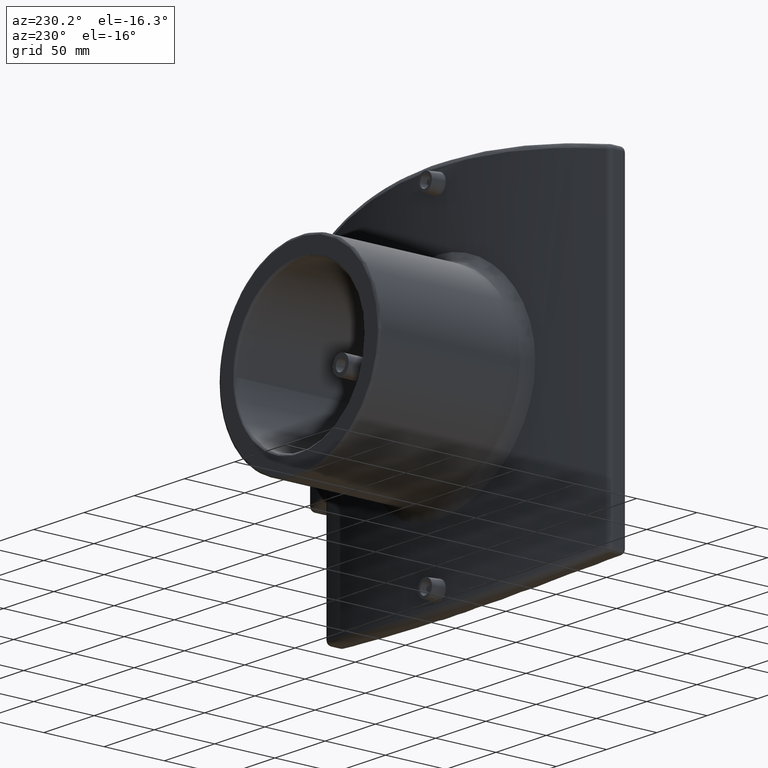
[diagram: clean part render]
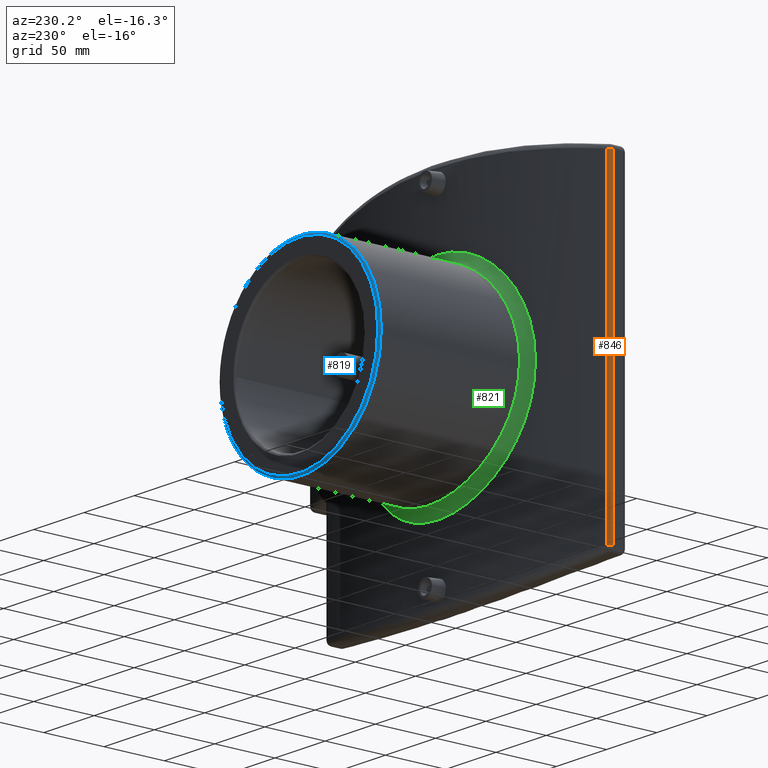
[diagram: same view with three faces highlighted in distinct colors, each labeled with its STEP entity id]
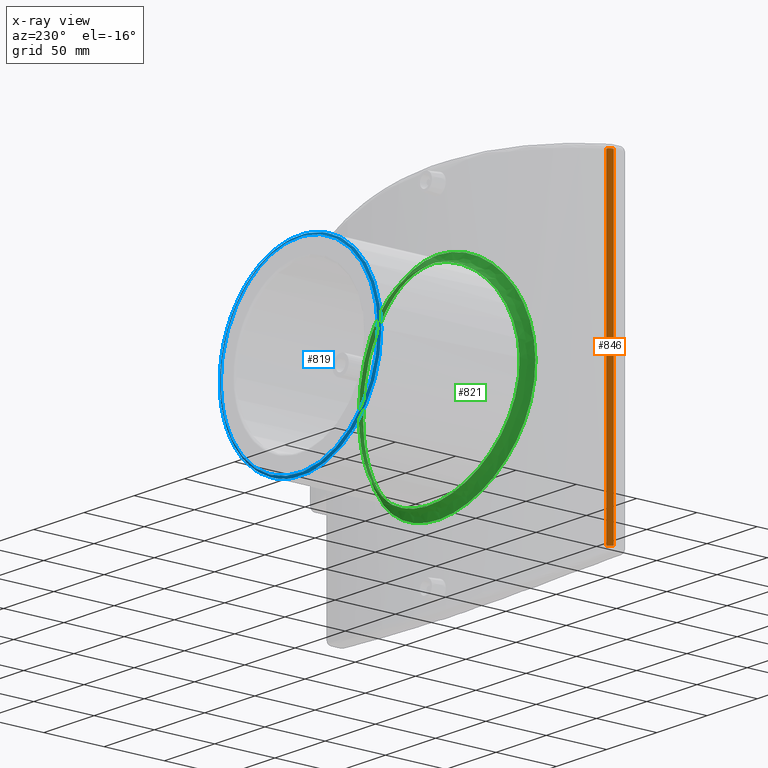
[diagram: x-ray of the same camera — body ghosted, the three highlighted faces saturated]
A machine part, auxiliary view with three faces highlighted in distinct colors.
The next image is the same camera in x-ray (body ghosted, the three faces saturated) — at least one of them is partly hidden behind the body in this view.
Their STEP definitions:

[orange] entity #846 — the highlighted cylindrical surface (edge-blend (fillet) strip) has radius 4 mm, axis along (0, 0, -1).
#31=LINE('',#1592,#61);
#34=LINE('',#1900,#64);
#61=VECTOR('',#1036,263.515226148029);
#64=VECTOR('',#1147,263.515226148028);
#125=CYLINDRICAL_SURFACE('',#949,4.);
#209=FACE_OUTER_BOUND('',#296,.T.);
#296=EDGE_LOOP('',(#661,#662,#663,#664));
#359=CIRCLE('',#934,4.00000000000002);
#369=CIRCLE('',#947,4.00000000000002);
#408=VERTEX_POINT('',#1580);
#409=VERTEX_POINT('',#1591);
#434=VERTEX_POINT('',#1815);
#442=VERTEX_POINT('',#1896);
#480=EDGE_CURVE('',#409,#408,#31,.T.);
#508=EDGE_CURVE('',#408,#434,#359,.F.);
#519=EDGE_CURVE('',#442,#409,#369,.F.);
#521=EDGE_CURVE('',#434,#442,#34,.T.);
#661=ORIENTED_EDGE('',*,*,#508,.T.);
#662=ORIENTED_EDGE('',*,*,#521,.T.);
#663=ORIENTED_EDGE('',*,*,#519,.T.);
#664=ORIENTED_EDGE('',*,*,#480,.T.);
#846=ADVANCED_FACE('',(#209),#125,.T.);
#934=AXIS2_PLACEMENT_3D('',#1816,#1115,#1116);
#947=AXIS2_PLACEMENT_3D('',#1897,#1141,#1142);
#949=AXIS2_PLACEMENT_3D('',#1899,#1145,#1146);
#1036=DIRECTION('',(0.,0.,-1.));
#1115=DIRECTION('center_axis',(-3.55271367880048E-14,-1.26381778809256E-14,
-1.));
#1116=DIRECTION('ref_axis',(-0.335158150851569,0.942161883074112,0.));
#1141=DIRECTION('center_axis',(0.,-4.24216152282627E-14,1.));
#1142=DIRECTION('ref_axis',(-1.,0.,0.));
#1145=DIRECTION('center_axis',(0.,0.,-1.));
#1146=DIRECTION('ref_axis',(-0.817055123859947,0.576559558566335,0.));
#1147=DIRECTION('',(0.,0.,1.));
#1580=CARTESIAN_POINT('',(-139.090632603403,390.997181475756,-131.757613074014));
#1591=CARTESIAN_POINT('',(-139.090632603403,390.997181475756,131.757613074014));
#1592=CARTESIAN_POINT('',(-139.090632603403,390.997181475756,0.));
#1815=CARTESIAN_POINT('',(-141.749999999997,387.22853394346,-131.757613074014));
#1816=CARTESIAN_POINT('Origin',(-137.749999999996,387.22853394346,-131.757613074014));
#1896=CARTESIAN_POINT('',(-141.749999999997,387.22853394346,131.757613074014));
#1897=CARTESIAN_POINT('Origin',(-137.749999999996,387.22853394346,131.757613074014));
#1899=CARTESIAN_POINT('Origin',(-137.749999999996,387.22853394346,0.));
#1900=CARTESIAN_POINT('',(-141.749999999997,387.22853394346,0.));

[blue] entity #819 — the highlighted toroidal blend (fillet) surface has major radius 78.4 mm and minor (blend) radius 1.6 mm.
#159=FACE_BOUND('',#252,.T.);
#182=FACE_OUTER_BOUND('',#251,.T.);
#251=EDGE_LOOP('',(#588));
#252=EDGE_LOOP('',(#589));
#336=CIRCLE('',#888,78.4);
#337=CIRCLE('',#891,80.);
#399=VERTEX_POINT('',#1295);
#401=VERTEX_POINT('',#1366);
#470=EDGE_CURVE('',#399,#399,#336,.T.);
#472=EDGE_CURVE('',#401,#401,#337,.T.);
#588=ORIENTED_EDGE('',*,*,#470,.T.);
#589=ORIENTED_EDGE('',*,*,#472,.T.);
#811=TOROIDAL_SURFACE('',#890,78.4,1.6);
#819=ADVANCED_FACE('',(#182,#159),#811,.T.);
#888=AXIS2_PLACEMENT_3D('',#1296,#1018,#1019);
#890=AXIS2_PLACEMENT_3D('',#1365,#1022,#1023);
#891=AXIS2_PLACEMENT_3D('',#1367,#1024,#1025);
#1018=DIRECTION('center_axis',(0.,-1.,0.));
#1019=DIRECTION('ref_axis',(1.,0.,0.));
#1022=DIRECTION('center_axis',(0.,-1.,0.));
#1023=DIRECTION('ref_axis',(0.,0.,-1.));
#1024=DIRECTION('center_axis',(0.,1.,0.));
#1025=DIRECTION('ref_axis',(1.,0.,0.));
#1295=CARTESIAN_POINT('',(-78.4,530.,-9.60123090531525E-15));
#1296=CARTESIAN_POINT('Origin',(0.,530.,0.));
#1365=CARTESIAN_POINT('Origin',(0.,528.4,0.));
#1366=CARTESIAN_POINT('',(-80.,528.4,9.79717439317883E-15));
#1367=CARTESIAN_POINT('Origin',(0.,528.4,0.));

[green] entity #821 — the highlighted face is a freeform B-spline surface patch.
#89=B_SPLINE_SURFACE_WITH_KNOTS('',3,3,((#1395,#1396,#1397,#1398,#1399,
#1400,#1401,#1402,#1403,#1404,#1405,#1406,#1407,#1408,#1409,#1410,#1411,
#1412,#1413,#1414,#1415,#1416,#1417,#1418,#1419),(#1420,#1421,#1422,#1423,
#1424,#1425,#1426,#1427,#1428,#1429,#1430,#1431,#1432,#1433,#1434,#1435,
#1436,#1437,#1438,#1439,#1440,#1441,#1442,#1443,#1444),(#1445,#1446,#1447,
#1448,#1449,#1450,#1451,#1452,#1453,#1454,#1455,#1456,#1457,#1458,#1459,
#1460,#1461,#1462,#1463,#1464,#1465,#1466,#1467,#1468,#1469),(#1470,#1471,
#1472,#1473,#1474,#1475,#1476,#1477,#1478,#1479,#1480,#1481,#1482,#1483,
#1484,#1485,#1486,#1487,#1488,#1489,#1490,#1491,#1492,#1493,#1494),(#1495,
#1496,#1497,#1498,#1499,#1500,#1501,#1502,#1503,#1504,#1505,#1506,#1507,
#1508,#1509,#1510,#1511,#1512,#1513,#1514,#1515,#1516,#1517,#1518,#1519),
(#1520,#1521,#1522,#1523,#1524,#1525,#1526,#1527,#1528,#1529,#1530,#1531,
#1532,#1533,#1534,#1535,#1536,#1537,#1538,#1539,#1540,#1541,#1542,#1543,
#1544)),.UNSPECIFIED.,.F.,.T.,.F.,(4,1,1,4),(4,1,1,1,1,1,1,1,1,1,1,1,1,
1,1,1,1,1,1,1,1,1,4),(0.,0.285714285714286,0.571428571428571,1.),(-6.20388832212787E-16,
1.72665278627976,3.45330557255951,6.90661114511902,9.2088148601587,11.5110185751984,
13.813222290238,16.1154260052777,18.4176297203174,20.7198334353571,23.0220371503967,
25.3242408654364,27.6264445804761,29.9286482955158,32.2308520105554,34.5330557255951,
35.684157583115,36.8352594406348,39.1374631556745,41.4396668707141,44.8929724432737,
46.6196252295534,48.3462780158332),.UNSPECIFIED.);
#95=B_SPLINE_CURVE_WITH_KNOTS('',3,(#1370,#1371,#1372,#1373,#1374,#1375,
#1376,#1377,#1378,#1379,#1380,#1381,#1382,#1383,#1384,#1385,#1386,#1387,
#1388,#1389,#1390,#1391,#1392,#1393,#1394),.UNSPECIFIED.,.T.,.F.,(4,1,1,
1,1,1,1,1,1,1,1,1,1,1,1,1,1,1,1,1,1,1,4),(-6.20388832212787E-16,1.72665278627976,
3.45330557255951,6.90661114511902,9.2088148601587,11.5110185751984,13.813222290238,
16.1154260052777,18.4176297203174,20.7198334353571,23.0220371503967,25.3242408654364,
27.6264445804761,29.9286482955158,32.2308520105554,34.5330557255951,35.684157583115,
36.8352594406348,39.1374631556745,41.4396668707141,44.8929724432737,46.6196252295534,
48.3462780158332),.UNSPECIFIED.);
#96=B_SPLINE_CURVE_WITH_KNOTS('',3,(#1547,#1548,#1549,#1550,#1551,#1552,
#1553,#1554,#1555,#1556,#1557,#1558,#1559,#1560,#1561,#1562,#1563,#1564,
#1565,#1566,#1567,#1568,#1569,#1570,#1571),.UNSPECIFIED.,.T.,.F.,(4,1,1,
1,1,1,1,1,1,1,1,1,1,1,1,1,1,1,1,1,1,1,4),(-48.3462780158332,-46.6196252295534,
-44.8929724432737,-41.4396668707141,-39.1374631556745,-36.8352594406348,
-35.684157583115,-34.5330557255951,-32.2308520105554,-29.9286482955158,
-27.6264445804761,-25.3242408654364,-23.0220371503967,-20.7198334353571,
-18.4176297203174,-16.1154260052777,-13.813222290238,-11.5110185751984,
-9.2088148601587,-6.90661114511902,-3.45330557255951,-1.72665278627976,
6.20388832212787E-16),.UNSPECIFIED.);
#184=FACE_OUTER_BOUND('',#255,.T.);
#255=EDGE_LOOP('',(#592,#593,#594,#595));
#338=CIRCLE('',#893,7.99999999999997);
#402=VERTEX_POINT('',#1369);
#403=VERTEX_POINT('',#1545);
#473=EDGE_CURVE('',#402,#402,#95,.T.);
#474=EDGE_CURVE('',#403,#402,#338,.T.);
#475=EDGE_CURVE('',#403,#403,#96,.T.);
#592=ORIENTED_EDGE('',*,*,#474,.T.);
#593=ORIENTED_EDGE('',*,*,#473,.T.);
#594=ORIENTED_EDGE('',*,*,#474,.F.);
#595=ORIENTED_EDGE('',*,*,#475,.T.);
#821=ADVANCED_FACE('',(#184),#89,.T.);
#893=AXIS2_PLACEMENT_3D('',#1546,#1028,#1029);
#1028=DIRECTION('center_axis',(8.32667268468869E-16,-1.77101121654537E-16,
-1.));
#1029=DIRECTION('ref_axis',(-0.208037825059098,-0.978120781572848,0.));
#1369=CARTESIAN_POINT('',(80.,413.745090605315,-2.22044604925031E-15));
#1370=CARTESIAN_POINT('Ctrl Pts',(80.0008201309667,413.744704478561,2.33346759778464E-5));
#1371=CARTESIAN_POINT('Ctrl Pts',(80.000801855999,413.744708749628,5.99941859728239));
#1372=CARTESIAN_POINT('Ctrl Pts',(78.6391504110109,414.067773115791,17.9983683730331));
#1373=CARTESIAN_POINT('Ctrl Pts',(70.6732553962849,415.855717268021,40.7531659615262));
#1374=CARTESIAN_POINT('Ctrl Pts',(54.1443536859897,419.070999879336,61.4520125548949));
#1375=CARTESIAN_POINT('Ctrl Pts',(29.7311600034439,421.9806943076,75.5615705124643));
#1376=CARTESIAN_POINT('Ctrl Pts',(6.09145256560296,423.228526904036,80.9842472203839));
#1377=CARTESIAN_POINT('Ctrl Pts',(-18.1261460797923,422.800062663488,79.1596938014846));
#1378=CARTESIAN_POINT('Ctrl Pts',(-40.6533090370776,420.842554442527,70.2898170339763));
#1379=CARTESIAN_POINT('Ctrl Pts',(-59.5139627487697,418.035508465178,55.2326941056274));
#1380=CARTESIAN_POINT('Ctrl Pts',(-73.1292121246254,415.333425604936,35.2947445761653));
#1381=CARTESIAN_POINT('Ctrl Pts',(-80.2982911806718,413.676429595302,12.1439265381207));
#1382=CARTESIAN_POINT('Ctrl Pts',(-80.2968431227765,413.677667041839,-12.1427700864777));
#1383=CARTESIAN_POINT('Ctrl Pts',(-73.1305460000373,415.332615483149,-35.2950524987753));
#1384=CARTESIAN_POINT('Ctrl Pts',(-59.5140493314051,418.035555214428,-55.2322285436699));
#1385=CARTESIAN_POINT('Ctrl Pts',(-40.6543644487137,420.842729400372,-70.2894923728537));
#1386=CARTESIAN_POINT('Ctrl Pts',(-21.8792659593339,422.472436273721,-77.6806863269993));
#1387=CARTESIAN_POINT('Ctrl Pts',(-6.0182669128439,423.015787117418,-80.0727340863534));
#1388=CARTESIAN_POINT('Ctrl Pts',(10.0322976042735,423.019977228635,-80.0806332414064));
#1389=CARTESIAN_POINT('Ctrl Pts',(29.7305744807195,421.980624506774,-75.5613803500152));
#1390=CARTESIAN_POINT('Ctrl Pts',(54.1444842096879,419.07096207213,-61.4521942195611));
#1391=CARTESIAN_POINT('Ctrl Pts',(70.6729540198706,415.855787628408,-40.7536790592622));
#1392=CARTESIAN_POINT('Ctrl Pts',(78.6392600608169,414.067747489389,-17.9980032026054));
#1393=CARTESIAN_POINT('Ctrl Pts',(80.0008384059343,413.744700207493,-5.99937192793042));
#1394=CARTESIAN_POINT('Ctrl Pts',(80.0008201309667,413.744704478561,2.33346759778464E-5));
#1395=CARTESIAN_POINT('Ctrl Pts',(86.3365824817641,405.919745528612,2.56681435698941E-5));
#1396=CARTESIAN_POINT('Ctrl Pts',(86.3365627594882,405.919749718902,6.59936045701062));
#1397=CARTESIAN_POINT('Ctrl Pts',(84.8670736705118,406.236704120694,19.7982052103364));
#1398=CARTESIAN_POINT('Ctrl Pts',(76.2703099016645,407.990833726309,44.8284825576788));
#1399=CARTESIAN_POINT('Ctrl Pts',(58.4323816965822,411.145307210224,67.5972138103843));
#1400=CARTESIAN_POINT('Ctrl Pts',(32.0857554174283,413.999971956629,83.1177275637107));
#1401=CARTESIAN_POINT('Ctrl Pts',(6.5738725678434,415.22420488221,89.0826719424223));
#1402=CARTESIAN_POINT('Ctrl Pts',(-19.5616682870572,414.803843984273,87.075663181633));
#1403=CARTESIAN_POINT('Ctrl Pts',(-43.8728973414325,412.883357195387,77.318798737374));
#1404=CARTESIAN_POINT('Ctrl Pts',(-64.2272434865563,410.129399558035,60.7559635161901));
#1405=CARTESIAN_POINT('Ctrl Pts',(-78.9207691132187,407.478419919737,38.8242190337818));
#1406=CARTESIAN_POINT('Ctrl Pts',(-86.65761211342,405.852761896099,13.3583191919328));
#1407=CARTESIAN_POINT('Ctrl Pts',(-86.6560493748167,405.853975939393,-13.3570470951255));
#1408=CARTESIAN_POINT('Ctrl Pts',(-78.9222086265177,407.477625119402,-38.8245577486527));
#1409=CARTESIAN_POINT('Ctrl Pts',(-64.2273369262091,410.129445423138,-60.755451398037));
#1410=CARTESIAN_POINT('Ctrl Pts',(-43.874036337678,412.883528844337,-77.318441610139));
#1411=CARTESIAN_POINT('Ctrl Pts',(-23.6120210648604,414.482413838284,-85.4487549596993));
#1412=CARTESIAN_POINT('Ctrl Pts',(-6.49489088821096,415.015488543094,-88.0800074949887));
#1413=CARTESIAN_POINT('Ctrl Pts',(10.826817627307,415.019599408708,-88.0886965655471));
#1414=CARTESIAN_POINT('Ctrl Pts',(32.0851235235188,413.999903475913,-83.1175183850168));
#1415=CARTESIAN_POINT('Ctrl Pts',(58.4325225572637,411.145270118047,-67.5974136415172));
#1416=CARTESIAN_POINT('Ctrl Pts',(76.269984657378,407.990902756004,-44.8290469651885));
#1417=CARTESIAN_POINT('Ctrl Pts',(84.8671920041676,406.236678978951,-19.7978035228659));
#1418=CARTESIAN_POINT('Ctrl Pts',(86.3366022040401,405.919741338321,-6.59930912072346));
#1419=CARTESIAN_POINT('Ctrl Pts',(86.3365824817641,405.919745528612,2.56681435698941E-5));
#1420=CARTESIAN_POINT('Ctrl Pts',(85.3221425344553,406.135527799118,2.56937581511918E-5));
#1421=CARTESIAN_POINT('Ctrl Pts',(85.3221240585179,406.13553169336,6.51979378939877));
#1422=CARTESIAN_POINT('Ctrl Pts',(83.8643857105443,406.446008992426,19.5595002056913));
#1423=CARTESIAN_POINT('Ctrl Pts',(75.3399101887784,408.163825277746,44.2784147375837));
#1424=CARTESIAN_POINT('Ctrl Pts',(57.6728975861859,411.246998611081,66.7320778989162));
#1425=CARTESIAN_POINT('Ctrl Pts',(31.645404534041,414.027719426331,82.0050286460322));
#1426=CARTESIAN_POINT('Ctrl Pts',(6.48125894408147,415.217918622441,87.867044587382));
#1427=CARTESIAN_POINT('Ctrl Pts',(-19.2885662779987,414.809422190788,85.8952697238699));
#1428=CARTESIAN_POINT('Ctrl Pts',(-43.2845146547548,412.940789496662,76.3014009020744));
#1429=CARTESIAN_POINT('Ctrl Pts',(-63.4115983517672,410.254448452395,59.9875856686444));
#1430=CARTESIAN_POINT('Ctrl Pts',(-77.966996323492,407.662232943324,38.3503775605024));
#1431=CARTESIAN_POINT('Ctrl Pts',(-85.6405372585187,406.069920494847,13.1985943089684));
#1432=CARTESIAN_POINT('Ctrl Pts',(-85.6389428612226,406.071113714025,-13.1973467374215));
#1433=CARTESIAN_POINT('Ctrl Pts',(-77.9684560653406,407.661448902726,-38.3507062953423));
#1434=CARTESIAN_POINT('Ctrl Pts',(-63.4116647277973,410.254507448982,-59.9871159882736));
#1435=CARTESIAN_POINT('Ctrl Pts',(-43.2856754284567,412.940917969855,-76.3009699901149));
#1436=CARTESIAN_POINT('Ctrl Pts',(-23.286406825777,414.496721372101,-84.2956742769331));
#1437=CARTESIAN_POINT('Ctrl Pts',(-6.40459919271617,415.015058388281,-86.8818573077131));
#1438=CARTESIAN_POINT('Ctrl Pts',(10.6761758931305,415.019018078181,-86.8902892785383));
#1439=CARTESIAN_POINT('Ctrl Pts',(31.6448490767746,414.027646815742,-82.0048051434104));
#1440=CARTESIAN_POINT('Ctrl Pts',(57.6729845477991,411.246971847993,-66.7322993924598));
#1441=CARTESIAN_POINT('Ctrl Pts',(75.3396101207002,408.163888562993,-44.2789602247383));
#1442=CARTESIAN_POINT('Ctrl Pts',(83.8644965661684,406.445985626975,-19.5591083681524));
#1443=CARTESIAN_POINT('Ctrl Pts',(85.3221610103927,406.135523904876,-6.51974240188245));
#1444=CARTESIAN_POINT('Ctrl Pts',(85.3221425344553,406.135527799118,2.56937581511918E-5));
#1445=CARTESIAN_POINT('Ctrl Pts',(83.3819406978834,406.967524674771,2.56979076207342E-5));
#1446=CARTESIAN_POINT('Ctrl Pts',(83.3819250077282,406.967528078472,6.36092474451062));
#1447=CARTESIAN_POINT('Ctrl Pts',(81.9471963576503,407.269752118105,19.0828835715711));
#1448=CARTESIAN_POINT('Ctrl Pts',(73.5637677120238,408.941275070701,43.1802288781196));
#1449=CARTESIAN_POINT('Ctrl Pts',(56.2270630281555,411.931674798008,65.0056246932907));
#1450=CARTESIAN_POINT('Ctrl Pts',(30.8087705342053,414.613561467824,79.7853582549109));
#1451=CARTESIAN_POINT('Ctrl Pts',(6.30547965762954,415.757574034487,85.4425168843081));
#1452=CARTESIAN_POINT('Ctrl Pts',(-18.7700237701529,415.365249062354,83.5408178770452));
#1453=CARTESIAN_POINT('Ctrl Pts',(-42.1657255251737,413.566515108457,74.2715547792479));
#1454=CARTESIAN_POINT('Ctrl Pts',(-61.857336571954,410.969629753151,58.4540168638376));
#1455=CARTESIAN_POINT('Ctrl Pts',(-76.1454002828523,408.453519441556,37.4043825919313));
#1456=CARTESIAN_POINT('Ctrl Pts',(-83.6951889589001,406.903662147033,12.8796311370674));
#1457=CARTESIAN_POINT('Ctrl Pts',(-83.6935312240482,406.904841727278,-12.8784483475956));
#1458=CARTESIAN_POINT('Ctrl Pts',(-76.1469053754344,408.452744821075,-37.4046725808832));
#1459=CARTESIAN_POINT('Ctrl Pts',(-61.8573385773912,410.969711203176,-58.4536415240794));
#1460=CARTESIAN_POINT('Ctrl Pts',(-42.1669584277017,413.566598154348,-74.2709340395117));
#1461=CARTESIAN_POINT('Ctrl Pts',(-22.6678337540407,415.064304967331,-81.9956563494197));
#1462=CARTESIAN_POINT('Ctrl Pts',(-6.23313389409236,415.562679524041,-84.4921051702909));
#1463=CARTESIAN_POINT('Ctrl Pts',(10.3900941926216,415.566431815601,-84.5000122866725));
#1464=CARTESIAN_POINT('Ctrl Pts',(30.8083792153335,414.613472473166,-79.7851212897507));
#1465=CARTESIAN_POINT('Ctrl Pts',(56.2270279465602,411.931667116532,-65.0058848420968));
#1466=CARTESIAN_POINT('Ctrl Pts',(73.5635240842417,408.941328664361,-43.1807383237395));
#1467=CARTESIAN_POINT('Ctrl Pts',(81.9472904985816,407.2697316959,-19.0825107080469));
#1468=CARTESIAN_POINT('Ctrl Pts',(83.3819563880386,406.96752127107,-6.36087334869535));
#1469=CARTESIAN_POINT('Ctrl Pts',(83.3819406978834,406.967524674771,2.56979076207342E-5));
#1470=CARTESIAN_POINT('Ctrl Pts',(80.7811346276961,409.601662326073,2.53910786831959E-5));
#1471=CARTESIAN_POINT('Ctrl Pts',(80.7811179899019,409.601665629275,6.12379369056846));
#1472=CARTESIAN_POINT('Ctrl Pts',(79.3842766836403,409.905638888625,18.3714795250931));
#1473=CARTESIAN_POINT('Ctrl Pts',(71.2264988816962,411.586843221157,41.5547492592043));
#1474=CARTESIAN_POINT('Ctrl Pts',(54.3827654657633,414.592802339523,62.4995677950184));
#1475=CARTESIAN_POINT('Ctrl Pts',(29.7694999539832,417.285950568812,76.6313928916747));
#1476=CARTESIAN_POINT('Ctrl Pts',(6.08968714285317,418.433930340285,82.0281766979551));
#1477=CARTESIAN_POINT('Ctrl Pts',(-18.1309635616864,418.040338009074,80.2150787530536));
#1478=CARTESIAN_POINT('Ctrl Pts',(-40.76028676533,416.234752190239,71.3637041077508));
#1479=CARTESIAN_POINT('Ctrl Pts',(-59.8520791140351,413.625871001079,56.2157949767964));
#1480=CARTESIAN_POINT('Ctrl Pts',(-73.7373252986594,411.096294464336,36.0003323153037));
#1481=CARTESIAN_POINT('Ctrl Pts',(-81.0860142677001,409.537420601692,12.4017950118221));
#1482=CARTESIAN_POINT('Ctrl Pts',(-81.0843815206752,409.538619510962,-12.400598552779));
#1483=CARTESIAN_POINT('Ctrl Pts',(-73.7387775760817,411.095512474413,-36.000685982487));
#1484=CARTESIAN_POINT('Ctrl Pts',(-59.852129095355,413.625956273817,-56.2154500117467));
#1485=CARTESIAN_POINT('Ctrl Pts',(-40.7613255809832,416.234854385817,-71.3631531155309));
#1486=CARTESIAN_POINT('Ctrl Pts',(-21.9014264668559,417.738231323467,-78.7396324196037));
#1487=CARTESIAN_POINT('Ctrl Pts',(-6.02140849549032,418.238384038686,-81.121798718972));
#1488=CARTESIAN_POINT('Ctrl Pts',(10.0371100607238,418.242147349733,-81.1292362737833));
#1489=CARTESIAN_POINT('Ctrl Pts',(29.7690804325701,417.285847144111,-76.6310860267046));
#1490=CARTESIAN_POINT('Ctrl Pts',(54.3827954811178,414.592801092716,-62.4998693649057));
#1491=CARTESIAN_POINT('Ctrl Pts',(71.2262335710368,411.586894599324,-41.5552160007235));
#1492=CARTESIAN_POINT('Ctrl Pts',(79.3843765104056,409.905619069413,-18.3711302718455));
#1493=CARTESIAN_POINT('Ctrl Pts',(80.7811512654903,409.601659022871,-6.12374290841107));
#1494=CARTESIAN_POINT('Ctrl Pts',(80.7811346276961,409.601662326073,2.53910786831959E-5));
#1495=CARTESIAN_POINT('Ctrl Pts',(80.0008369410348,412.18904163111,2.39804272102718E-5));
#1496=CARTESIAN_POINT('Ctrl Pts',(80.0008238264669,412.189045589368,6.02411010145309));
#1497=CARTESIAN_POINT('Ctrl Pts',(78.6276554288401,412.504915927341,18.0724375610803));
#1498=CARTESIAN_POINT('Ctrl Pts',(70.6018994864871,414.252467772607,40.8967801207434));
#1499=CARTESIAN_POINT('Ctrl Pts',(53.9935165035943,417.388703628325,61.5813455579394));
#1500=CARTESIAN_POINT('Ctrl Pts',(29.601117539023,420.216312541657,75.6030942567561));
#1501=CARTESIAN_POINT('Ctrl Pts',(6.06016911337168,421.426339052909,80.9745619070736));
#1502=CARTESIAN_POINT('Ctrl Pts',(-18.0377623904542,421.011042937922,79.1684078937166));
#1503=CARTESIAN_POINT('Ctrl Pts',(-40.5032190803223,419.111138698234,70.3706614851473));
#1504=CARTESIAN_POINT('Ctrl Pts',(-59.3875680372877,416.379089928548,55.3712932214981));
#1505=CARTESIAN_POINT('Ctrl Pts',(-73.0739888292697,413.742221724332,35.4257099134526));
#1506=CARTESIAN_POINT('Ctrl Pts',(-80.3007009146737,412.12230097523,12.1971355095822));
#1507=CARTESIAN_POINT('Ctrl Pts',(-80.299103865703,412.123509686858,-12.1960770876299));
#1508=CARTESIAN_POINT('Ctrl Pts',(-73.0754593100007,413.741423110337,-35.425914731514));
#1509=CARTESIAN_POINT('Ctrl Pts',(-59.387506794368,416.379152912091,-55.3709567399942));
#1510=CARTESIAN_POINT('Ctrl Pts',(-40.5045759245573,419.111246370503,-70.3699528027282));
#1511=CARTESIAN_POINT('Ctrl Pts',(-21.780260057787,420.693133928389,-77.7019329715153));
#1512=CARTESIAN_POINT('Ctrl Pts',(-5.9896690184582,421.220104213345,-80.0720178149538));
#1513=CARTESIAN_POINT('Ctrl Pts',(9.98425343478353,421.224117531305,-80.0795410003428));
#1514=CARTESIAN_POINT('Ctrl Pts',(29.6008154215543,420.216244200813,-75.602937260945));
#1515=CARTESIAN_POINT('Ctrl Pts',(53.9933928305468,417.388676044295,-61.581561477499));
#1516=CARTESIAN_POINT('Ctrl Pts',(70.6017056257279,414.252532108826,-40.8972755838236));
#1517=CARTESIAN_POINT('Ctrl Pts',(78.6277341162476,412.504892177794,-18.0720791650749));
#1518=CARTESIAN_POINT('Ctrl Pts',(80.0008500556027,412.189037672852,-6.02406214059865));
#1519=CARTESIAN_POINT('Ctrl Pts',(80.0008369410348,412.18904163111,2.39804272102718E-5));
#1520=CARTESIAN_POINT('Ctrl Pts',(80.0008201309667,413.744704478561,2.33346759778464E-5));
#1521=CARTESIAN_POINT('Ctrl Pts',(80.000801855999,413.744708749628,5.99941859728239));
#1522=CARTESIAN_POINT('Ctrl Pts',(78.6391504110109,414.067773115791,17.9983683730331));
#1523=CARTESIAN_POINT('Ctrl Pts',(70.6732553962849,415.855717268021,40.7531659615262));
#1524=CARTESIAN_POINT('Ctrl Pts',(54.1443536859897,419.070999879336,61.4520125548949));
#1525=CARTESIAN_POINT('Ctrl Pts',(29.7311600034439,421.9806943076,75.5615705124643));
#1526=CARTESIAN_POINT('Ctrl Pts',(6.09145256560296,423.228526904036,80.9842472203839));
#1527=CARTESIAN_POINT('Ctrl Pts',(-18.1261460797923,422.800062663488,79.1596938014846));
#1528=CARTESIAN_POINT('Ctrl Pts',(-40.6533090370776,420.842554442527,70.2898170339763));
#1529=CARTESIAN_POINT('Ctrl Pts',(-59.5139627487697,418.035508465178,55.2326941056274));
#1530=CARTESIAN_POINT('Ctrl Pts',(-73.1292121246254,415.333425604936,35.2947445761653));
#1531=CARTESIAN_POINT('Ctrl Pts',(-80.2982911806718,413.676429595302,12.1439265381207));
#1532=CARTESIAN_POINT('Ctrl Pts',(-80.2968431227765,413.677667041839,-12.1427700864777));
#1533=CARTESIAN_POINT('Ctrl Pts',(-73.1305460000373,415.332615483149,-35.2950524987753));
#1534=CARTESIAN_POINT('Ctrl Pts',(-59.5140493314051,418.035555214428,-55.2322285436699));
#1535=CARTESIAN_POINT('Ctrl Pts',(-40.6543644487137,420.842729400372,-70.2894923728537));
#1536=CARTESIAN_POINT('Ctrl Pts',(-21.8792659593339,422.472436273721,-77.6806863269993));
#1537=CARTESIAN_POINT('Ctrl Pts',(-6.0182669128439,423.015787117418,-80.0727340863534));
#1538=CARTESIAN_POINT('Ctrl Pts',(10.0322976042735,423.019977228635,-80.0806332414064));
#1539=CARTESIAN_POINT('Ctrl Pts',(29.7305744807195,421.980624506774,-75.5613803500152));
#1540=CARTESIAN_POINT('Ctrl Pts',(54.1444842096879,419.07096207213,-61.4521942195611));
#1541=CARTESIAN_POINT('Ctrl Pts',(70.6729540198706,415.855787628408,-40.7536790592622));
#1542=CARTESIAN_POINT('Ctrl Pts',(78.6392600608169,414.067747489389,-17.9980032026054));
#1543=CARTESIAN_POINT('Ctrl Pts',(80.0008384059343,413.744700207493,-5.99937192793042));
#1544=CARTESIAN_POINT('Ctrl Pts',(80.0008201309667,413.744704478561,2.33346759778464E-5));
#1545=CARTESIAN_POINT('',(86.3356973995272,405.920124352732,-4.44089209850063E-15));
#1546=CARTESIAN_POINT('Origin',(88.,413.745090605315,4.44089209850063E-15));
#1547=CARTESIAN_POINT('Ctrl Pts',(86.3365824817641,405.919745528612,2.56681435698941E-5));
#1548=CARTESIAN_POINT('Ctrl Pts',(86.3366022040401,405.919741338321,-6.59930912072346));
#1549=CARTESIAN_POINT('Ctrl Pts',(84.8671920041676,406.236678978951,-19.7978035228659));
#1550=CARTESIAN_POINT('Ctrl Pts',(76.269984657378,407.990902756004,-44.8290469651885));
#1551=CARTESIAN_POINT('Ctrl Pts',(58.4325225572637,411.145270118047,-67.5974136415172));
#1552=CARTESIAN_POINT('Ctrl Pts',(32.0851235235188,413.999903475913,-83.1175183850168));
#1553=CARTESIAN_POINT('Ctrl Pts',(10.826817627307,415.019599408708,-88.0886965655471));
#1554=CARTESIAN_POINT('Ctrl Pts',(-6.49489088821096,415.015488543094,-88.0800074949887));
#1555=CARTESIAN_POINT('Ctrl Pts',(-23.6120210648604,414.482413838284,-85.4487549596993));
#1556=CARTESIAN_POINT('Ctrl Pts',(-43.874036337678,412.883528844337,-77.318441610139));
#1557=CARTESIAN_POINT('Ctrl Pts',(-64.2273369262091,410.129445423138,-60.755451398037));
#1558=CARTESIAN_POINT('Ctrl Pts',(-78.9222086265177,407.477625119402,-38.8245577486527));
#1559=CARTESIAN_POINT('Ctrl Pts',(-86.6560493748167,405.853975939393,-13.3570470951255));
#1560=CARTESIAN_POINT('Ctrl Pts',(-86.65761211342,405.852761896099,13.3583191919328));
#1561=CARTESIAN_POINT('Ctrl Pts',(-78.9207691132187,407.478419919737,38.8242190337818));
#1562=CARTESIAN_POINT('Ctrl Pts',(-64.2272434865563,410.129399558035,60.7559635161901));
#1563=CARTESIAN_POINT('Ctrl Pts',(-43.8728973414325,412.883357195387,77.318798737374));
#1564=CARTESIAN_POINT('Ctrl Pts',(-19.5616682870572,414.803843984273,87.075663181633));
#1565=CARTESIAN_POINT('Ctrl Pts',(6.5738725678434,415.22420488221,89.0826719424223));
#1566=CARTESIAN_POINT('Ctrl Pts',(32.0857554174283,413.999971956629,83.1177275637107));
#1567=CARTESIAN_POINT('Ctrl Pts',(58.4323816965822,411.145307210224,67.5972138103843));
#1568=CARTESIAN_POINT('Ctrl Pts',(76.2703099016645,407.990833726309,44.8284825576788));
#1569=CARTESIAN_POINT('Ctrl Pts',(84.8670736705118,406.236704120694,19.7982052103364));
#1570=CARTESIAN_POINT('Ctrl Pts',(86.3365627594882,405.919749718902,6.59936045701062));
#1571=CARTESIAN_POINT('Ctrl Pts',(86.3365824817641,405.919745528612,2.56681435698941E-5));